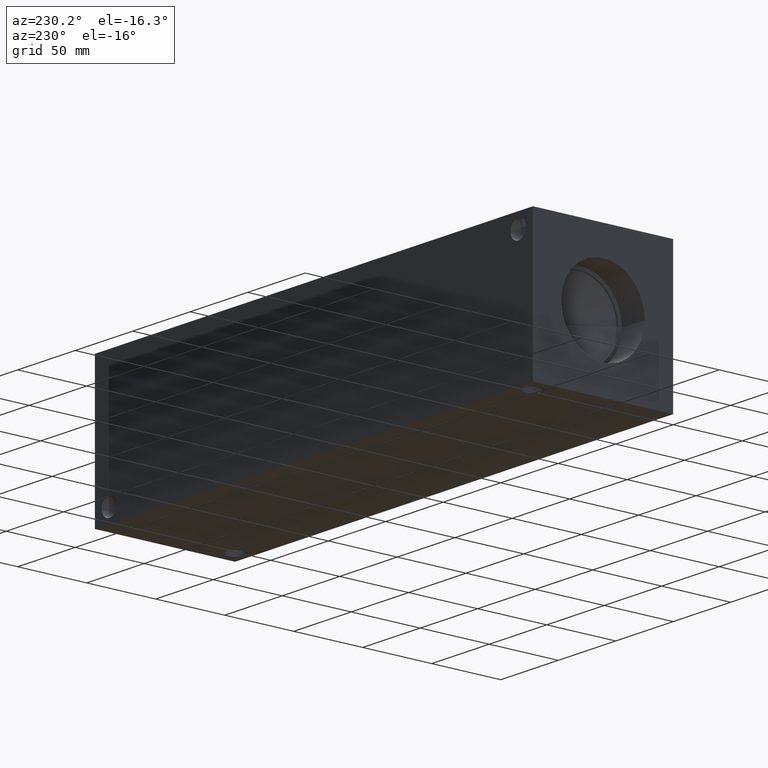
[diagram: clean part render]
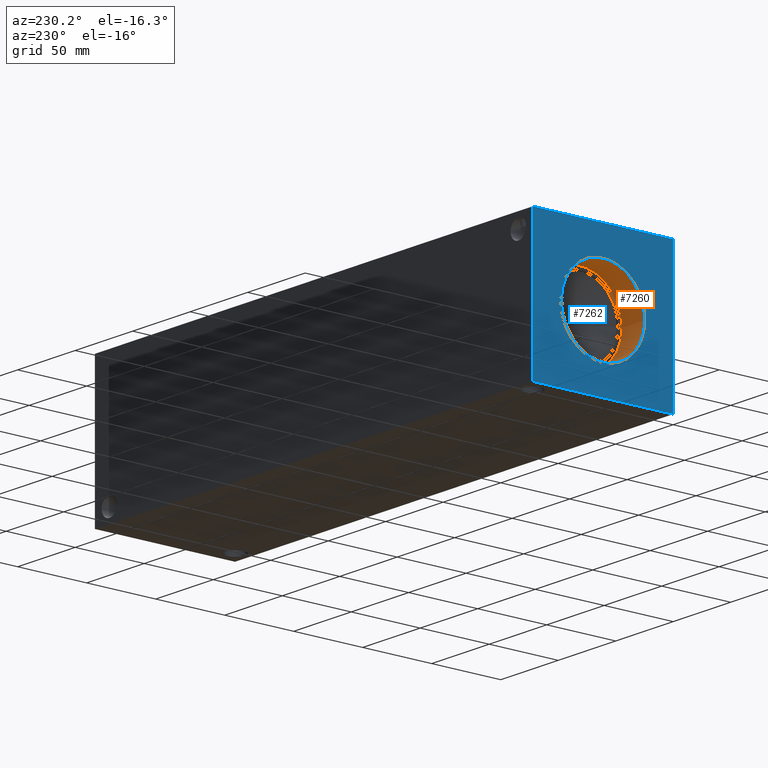
[diagram: same view with the hole feature highlighted: cylindrical wall and planar end face, labeled with their STEP entity ids]
A machine part, auxiliary view. The highlighted faces form one hole feature of diameter 60.6298 mm: the cylindrical wall (entity #7260, orange) and its adjacent planar end face (entity #7262, blue) — they share a circular edge in the B-rep.
Wall:
#44=CYLINDRICAL_SURFACE('',#7613,30.3149);
#117=CIRCLE('',#7610,30.3149);
#118=CIRCLE('',#7611,30.3149);
#120=CIRCLE('',#7614,30.3149);
#121=CIRCLE('',#7615,30.3149);
#765=FACE_OUTER_BOUND('',#1172,.T.);
#1172=EDGE_LOOP('',(#6437,#6438,#6439,#6440,#6441,#6442));
#1899=LINE('',#12352,#2617);
#2617=VECTOR('',#9001,30.3149);
#3492=VERTEX_POINT('',#12341);
#3493=VERTEX_POINT('',#12342);
#3495=VERTEX_POINT('',#12348);
#3496=VERTEX_POINT('',#12349);
#4482=EDGE_CURVE('',#3492,#3493,#117,.T.);
#4483=EDGE_CURVE('',#3493,#3492,#118,.T.);
#4485=EDGE_CURVE('',#3495,#3496,#120,.T.);
#4486=EDGE_CURVE('',#3496,#3495,#121,.T.);
#4487=EDGE_CURVE('',#3496,#3493,#1899,.T.);
#6437=ORIENTED_EDGE('',*,*,#4485,.F.);
#6438=ORIENTED_EDGE('',*,*,#4486,.F.);
#6439=ORIENTED_EDGE('',*,*,#4487,.T.);
#6440=ORIENTED_EDGE('',*,*,#4482,.F.);
#6441=ORIENTED_EDGE('',*,*,#4483,.F.);
#6442=ORIENTED_EDGE('',*,*,#4487,.F.);
#7260=ADVANCED_FACE('',(#765),#44,.F.);
#7610=AXIS2_PLACEMENT_3D('',#12343,#8989,#8990);
#7611=AXIS2_PLACEMENT_3D('',#12344,#8991,#8992);
#7613=AXIS2_PLACEMENT_3D('',#12347,#8995,#8996);
#7614=AXIS2_PLACEMENT_3D('',#12350,#8997,#8998);
#7615=AXIS2_PLACEMENT_3D('',#12351,#8999,#9000);
#8989=DIRECTION('center_axis',(-1.,0.,0.));
#8990=DIRECTION('ref_axis',(0.,1.,0.));
#8991=DIRECTION('center_axis',(-1.,0.,0.));
#8992=DIRECTION('ref_axis',(0.,1.,0.));
#8995=DIRECTION('center_axis',(-1.,0.,0.));
#8996=DIRECTION('ref_axis',(0.,1.,0.));
#8997=DIRECTION('center_axis',(1.,0.,0.));
#8998=DIRECTION('ref_axis',(0.,1.,0.));
#8999=DIRECTION('center_axis',(1.,0.,0.));
#9000=DIRECTION('ref_axis',(0.,1.,0.));
#9001=DIRECTION('',(1.,0.,0.));
#12341=CARTESIAN_POINT('',(19.9136,81.1149,50.8));
#12342=CARTESIAN_POINT('',(19.9136,20.4851,50.8));
#12343=CARTESIAN_POINT('Origin',(19.9136,50.8,50.8));
#12344=CARTESIAN_POINT('Origin',(19.9136,50.8,50.8));
#12347=CARTESIAN_POINT('Origin',(9.9568,50.8,50.8));
#12348=CARTESIAN_POINT('',(0.,81.1149,50.8));
#12349=CARTESIAN_POINT('',(0.,20.4851,50.8));
#12350=CARTESIAN_POINT('Origin',(0.,50.8,50.8));
#12351=CARTESIAN_POINT('Origin',(0.,50.8,50.8));
#12352=CARTESIAN_POINT('',(9.9568,20.4851,50.8));
End face:
#120=CIRCLE('',#7614,30.3149);
#121=CIRCLE('',#7615,30.3149);
#163=FACE_BOUND('',#1175,.T.);
#401=PLANE('',#7617);
#767=FACE_OUTER_BOUND('',#1174,.T.);
#1174=EDGE_LOOP('',(#6448,#6449,#6450,#6451));
#1175=EDGE_LOOP('',(#6452,#6453));
#1491=LINE('',#11219,#2209);
#1901=LINE('',#12358,#2619);
#1902=LINE('',#12359,#2620);
#1903=LINE('',#12360,#2621);
#2209=VECTOR('',#8083,10.);
#2619=VECTOR('',#9007,10.);
#2620=VECTOR('',#9008,10.);
#2621=VECTOR('',#9009,10.);
#3151=VERTEX_POINT('',#11212);
#3154=VERTEX_POINT('',#11217);
#3495=VERTEX_POINT('',#12348);
#3496=VERTEX_POINT('',#12349);
#3497=VERTEX_POINT('',#12356);
#3498=VERTEX_POINT('',#12357);
#3987=EDGE_CURVE('',#3154,#3151,#1491,.T.);
#4485=EDGE_CURVE('',#3495,#3496,#120,.T.);
#4486=EDGE_CURVE('',#3496,#3495,#121,.T.);
#4489=EDGE_CURVE('',#3497,#3498,#1901,.T.);
#4490=EDGE_CURVE('',#3498,#3151,#1902,.T.);
#4491=EDGE_CURVE('',#3497,#3154,#1903,.T.);
#6448=ORIENTED_EDGE('',*,*,#4489,.T.);
#6449=ORIENTED_EDGE('',*,*,#4490,.T.);
#6450=ORIENTED_EDGE('',*,*,#3987,.F.);
#6451=ORIENTED_EDGE('',*,*,#4491,.F.);
#6452=ORIENTED_EDGE('',*,*,#4485,.T.);
#6453=ORIENTED_EDGE('',*,*,#4486,.T.);
#7262=ADVANCED_FACE('',(#767,#163),#401,.T.);
#7614=AXIS2_PLACEMENT_3D('',#12350,#8997,#8998);
#7615=AXIS2_PLACEMENT_3D('',#12351,#8999,#9000);
#7617=AXIS2_PLACEMENT_3D('',#12355,#9005,#9006);
#8083=DIRECTION('',(0.,-1.,0.));
#8997=DIRECTION('center_axis',(1.,0.,0.));
#8998=DIRECTION('ref_axis',(0.,1.,0.));
#8999=DIRECTION('center_axis',(1.,0.,0.));
#9000=DIRECTION('ref_axis',(0.,1.,0.));
#9005=DIRECTION('center_axis',(-1.,0.,0.));
#9006=DIRECTION('ref_axis',(0.,-1.,0.));
#9007=DIRECTION('',(0.,-1.,0.));
#9008=DIRECTION('',(0.,0.,1.));
#9009=DIRECTION('',(0.,0.,1.));
#11212=CARTESIAN_POINT('',(0.,0.,101.6));
#11217=CARTESIAN_POINT('',(0.,101.6,101.6));
#11219=CARTESIAN_POINT('',(0.,101.6,101.6));
#12348=CARTESIAN_POINT('',(0.,81.1149,50.8));
#12349=CARTESIAN_POINT('',(0.,20.4851,50.8));
#12350=CARTESIAN_POINT('Origin',(0.,50.8,50.8));
#12351=CARTESIAN_POINT('Origin',(0.,50.8,50.8));
#12355=CARTESIAN_POINT('Origin',(0.,101.6,0.));
#12356=CARTESIAN_POINT('',(0.,101.6,0.));
#12357=CARTESIAN_POINT('',(0.,0.,0.));
#12358=CARTESIAN_POINT('',(0.,101.6,0.));
#12359=CARTESIAN_POINT('',(0.,0.,0.));
#12360=CARTESIAN_POINT('',(0.,101.6,0.));